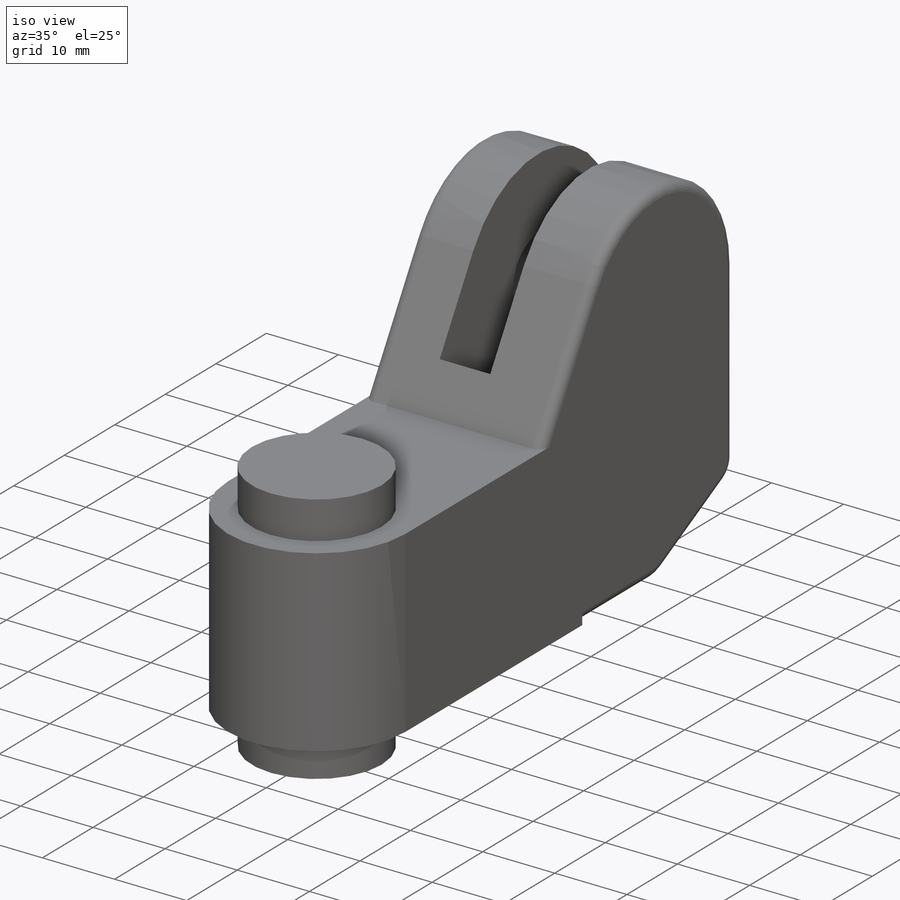
[diagram: iso view]
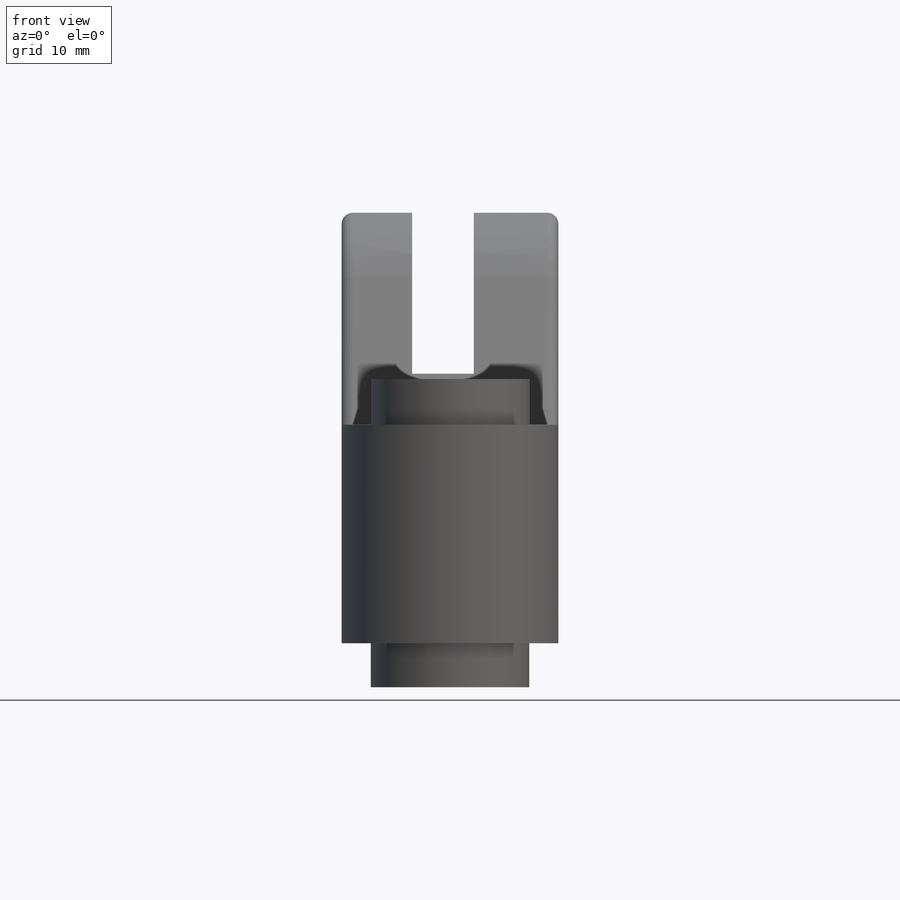
[diagram: front view]
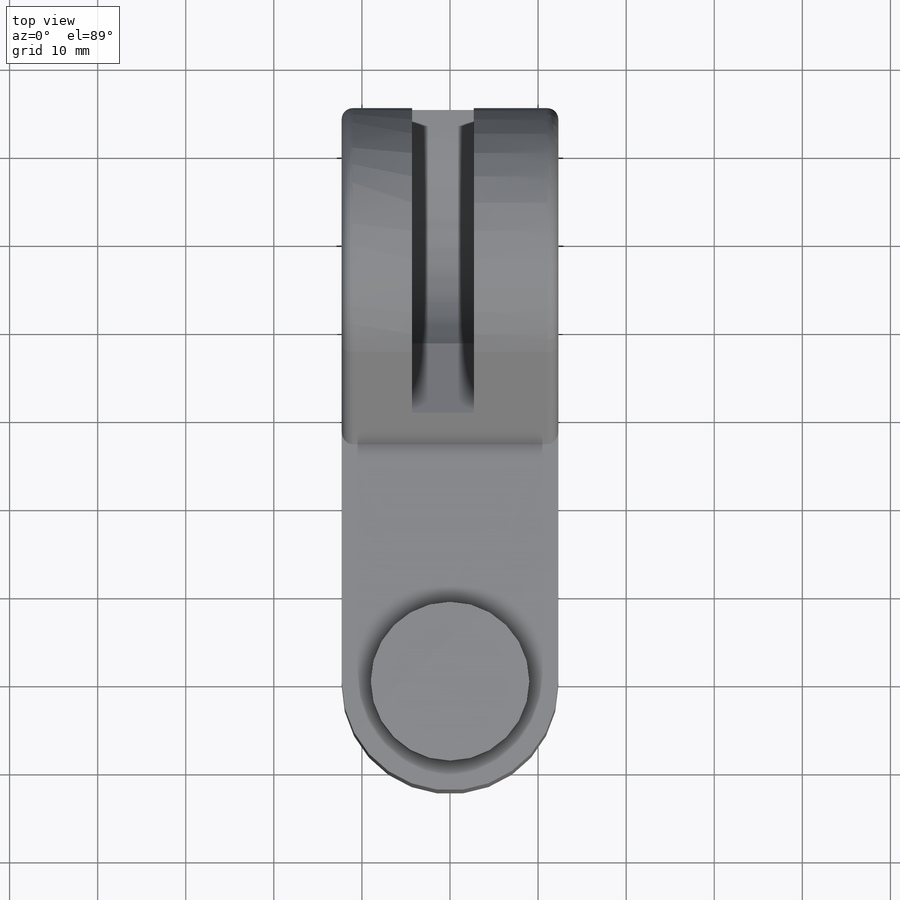
[diagram: top view]
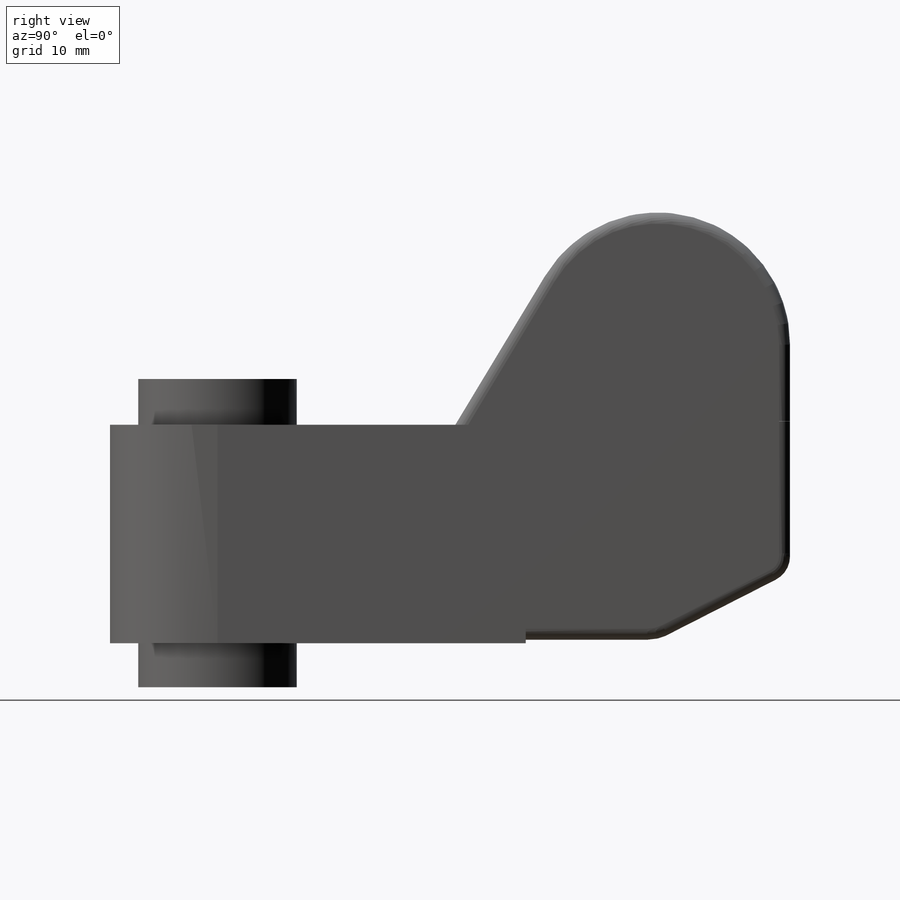
[diagram: right view]
SOLIDWORKS PART (.sldprt)
format: sldprt  version: not decoded by parser v0  size: 745,984 bytes
history: native  units: mm
features: sketch x13, cut_extrude x10, extrude x3, material x1, fillet x1, chamfer x1 (+11 scaffold rows collapsed)
feature tree (40):
  scaffold x11  (default folders/planes/origin — collapsed)
  material  "Material <not specified>"
  sketch  "Sketch1"  dims[c1.D5=5.0mm c1.D6=15.0mm c1.D7=3.0mm c1.D1=77.3mm c1.D2=12.3mm c1.D3=35.0mm c1.D4=0.4mm c1.D8=~4.772548mm c2.D8=153.0deg c2.D9=15.0mm c2.D10=33.5mm c2.D11=24.8mm c2.D12=38.0mm]
  extrude  "Boss-Extrude1"  Depth=24.6mm
  sketch  "Sketch2"  dims[D1=1.0mm]
  cut_extrude  "Cut-Extrude1"  [1 undecoded]
  sketch  "Sketch3"  dims[D1=18.0mm]
  extrude  "Boss-Extrude2"  Depth=5mm
  sketch  "Sketch4"  dims[c1.D1=14.0mm c1.D3=20.0mm c1.D2=1.2mm c1.D4=~8.147176mm c2.D4=30.0deg c2.D5=3.3mm c2.D6=12.0mm]
  cut_extrude  "Cut-Extrude2"  Depth=7mm
  sketch  "Sketch5"  dims[D1=10.0mm]
  cut_extrude  "Cut-Extrude3"  Depth=7mm
  sketch  "Sketch6"  dims[D1=7.0mm D3=2.0mm D2=14.0mm D4=0.01mm]
  cut_extrude  "Cut-Extrude4"  Depth=1.25mm
  fillet  "Fillet1"  Radius=1.25mm
  sketch  "Sketch8"  dims[c1.D1=2.0mm c1.D5=6.4mm c2.D1=~9.121137mm c2.D2=11.0mm c2.D3=12.6mm c2.D4=4.0mm c2.D6=~6.026539mm]
  cut_extrude  "Cut-Extrude6"  Depth=25.9mm
  sketch  "Sketch7"  dims[D9=3.0mm D1=0.01mm D2=0.01mm D3=0.01mm D4=0.01mm D5=15.0mm D6=0.01mm D7=9.8mm D8=11.0mm D10=1.0mm]
  cut_extrude  "Cut-Extrude5"  Depth=1.25mm
  sketch  "Sketch9"  dims[D1=5.5mm D2=2.0mm]
  extrude  "Boss-Extrude3"  Depth=2mm
  chamfer  "Chamfer1"  Distance=0.25mm Angle=45deg
  sketch  "Sketch10"  dims[D3=2.5mm D1=10.0mm D2=18.0mm]
  cut_extrude  "Cut-Extrude7"  Depth=0.1mm
  sketch  "Sketch11"  dims[D1=0.4mm D2=2.0 D3=2.0]
  cut_extrude  "Cut-Extrude8"  Depth=0.2mm
  sketch  "Sketch12"  dims[D1=3.5mm D2=5.5mm D3=14.5mm D4=7.0mm]
  cut_extrude  "Cut-Extrude9"  Depth=0.1mm
  sketch  "Sketch13"  dims[D1=0.5mm]
  cut_extrude  "Cut-Extrude10"  Depth=0.2mm
decode coverage: 27 of 28 modeling features carry decoded parameters
note: ~ marks probable driven/reference dimensions
note: 1 parameter value undecoded
note: suppression state not decoded; provenance and decode notes live in map.json
